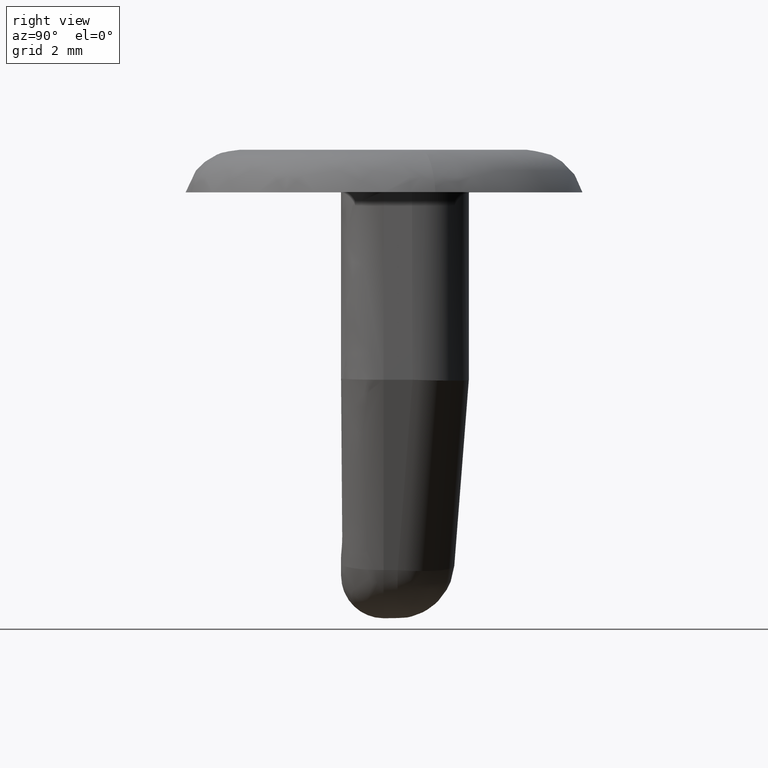
[diagram: clean part render]
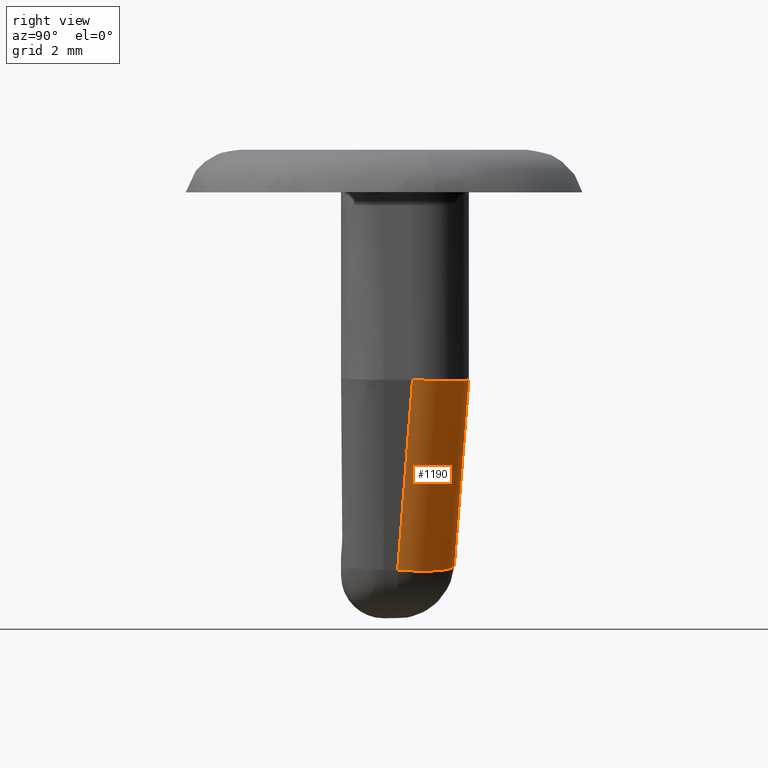
[diagram: same view with one face highlighted and labeled with its STEP entity id]
A machine part, right view. The second image highlights one B-rep face of the part: STEP entity #1190.
In plain terms, the highlighted face is a freeform B-spline surface patch.
Its self-contained STEP definition (entity closure, byte-faithful):
#1038=CARTESIAN_POINT('',(-0.000001159809432,2.487830042982005,-13.155775303790801));
#1039=VERTEX_POINT('',#1038);
#1097=CARTESIAN_POINT('',(1.977102512806405,0.493905729721868,-13.301766975822019));
#1098=VERTEX_POINT('',#1097);
#1099=CARTESIAN_POINT('',(-0.000001159809432,2.487830042982006,-13.155775303790801));
#1100=CARTESIAN_POINT('',(1.954136987054395,2.464669669888497,-13.452227801463254));
#1101=CARTESIAN_POINT('',(1.977102512806405,0.493905729721868,-13.301766975822019));
#1109=(BOUNDED_CURVE()B_SPLINE_CURVE(2,(#1099,#1100,#1101),.UNSPECIFIED.,.F.,.U.)CURVE()GEOMETRIC_REPRESENTATION_ITEM()QUASI_UNIFORM_CURVE()RATIONAL_B_SPLINE_CURVE((1.0,0.711249589235532,1.0))REPRESENTATION_ITEM(''));
#1110=EDGE_CURVE('',#1039,#1098,#1109,.T.);
#1131=CARTESIAN_POINT('',(-0.100604930521645,2.474170258274497,-13.312149227053260));
#1132=CARTESIAN_POINT('',(0.976104520698729,3.025291603333124,-6.257802623758908));
#1133=CARTESIAN_POINT('',(2.074565500417537,2.531635356025844,-13.648636351440576));
#1134=CARTESIAN_POINT('',(3.151274951637910,3.082756701084473,-6.594289748146228));
#1135=CARTESIAN_POINT('',(1.948287844112666,0.341724637567641,-13.458275576410145));
#1136=CARTESIAN_POINT('',(3.024997295333040,0.892845982626268,-6.403928973115797));
#1144=(BOUNDED_SURFACE()B_SPLINE_SURFACE(1,2,((#1131,#1133,#1135),(#1132,#1134,#1136)),.UNSPECIFIED.,.F.,.F.,.U.)B_SPLINE_SURFACE_WITH_KNOTS((2,2),(3,3),(0.0,7.157293062236381),(0.0,3.540894545729535),.UNSPECIFIED.)GEOMETRIC_REPRESENTATION_ITEM()RATIONAL_B_SPLINE_SURFACE(((1.0,0.671073070326273,0.996137879652317),(1.0,0.671073070326273,0.996137879652317)))REPRESENTATION_ITEM('')SURFACE());
#1145=CARTESIAN_POINT('',(1.000572628922914,2.999980810908825,-6.600251620136699));
#1146=VERTEX_POINT('',#1145);
#1147=CARTESIAN_POINT('',(2.999950953612275,1.017458232583580,-6.600301133317520));
#1148=VERTEX_POINT('',#1147);
#1149=CARTESIAN_POINT('',(1.000572628922914,2.999980810908825,-6.600251620136699));
#1150=CARTESIAN_POINT('',(1.131695575817114,2.999411666225943,-6.607536665248436));
#1151=CARTESIAN_POINT('',(1.261487236234938,2.986293614454879,-6.612565513271774));
#1152=CARTESIAN_POINT('',(1.454084687215060,2.947768702725762,-6.618909944822135));
#1153=CARTESIAN_POINT('',(1.517769332442466,2.931765611675962,-6.620772616905091));
#1154=CARTESIAN_POINT('',(1.642209093026433,2.894034651665202,-6.624046317691152));
#1155=CARTESIAN_POINT('',(1.764271633155027,2.850478370675647,-6.626884170212424));
#1156=CARTESIAN_POINT('',(1.881628625929032,2.795396678268909,-6.628964881105359));
#1157=CARTESIAN_POINT('',(1.996591445159226,2.734452447149859,-6.630690931444335));
#1158=CARTESIAN_POINT('',(2.053171308711628,2.700842987082765,-6.631378974856339));
#1159=CARTESIAN_POINT('',(2.216657316181497,2.592526515754209,-6.632898050488094));
#1160=CARTESIAN_POINT('',(2.317185139369072,2.510732377189785,-6.633198008059449));
#1161=CARTESIAN_POINT('',(2.455528966145996,2.373945447034056,-6.632670999903683));
#1162=CARTESIAN_POINT('',(2.499554435049163,2.325984109648395,-6.632330782925951));
#1163=CARTESIAN_POINT('',(2.583286793628629,2.225171179335433,-6.631318212792373));
#1164=CARTESIAN_POINT('',(2.622615591086424,2.172735005148325,-6.630648929632603));
#1165=CARTESIAN_POINT('',(2.731802921068366,2.011307177148264,-6.628196485839058));
#1166=CARTESIAN_POINT('',(2.793557198701412,1.897506923367659,-6.625965907697662));
#1167=CARTESIAN_POINT('',(2.869460814897596,1.717437142607916,-6.621747897497009));
#1168=CARTESIAN_POINT('',(2.892035914549600,1.655511155536523,-6.620185888521981));
#1169=CARTESIAN_POINT('',(2.930600686182934,1.530868262932040,-6.616829455071717));
#1170=CARTESIAN_POINT('',(2.946695930707158,1.467989912832090,-6.615032411490319));
#1171=CARTESIAN_POINT('',(2.985637408346106,1.277721886320084,-6.609299730871997));
#1172=CARTESIAN_POINT('',(2.999229900358202,1.148715068785231,-6.605025304325687));
#1173=CARTESIAN_POINT('',(2.999950953612275,1.017458232583580,-6.600301133317520));
#1174=B_SPLINE_CURVE_WITH_KNOTS('',3,(#1149,#1150,#1151,#1152,#1153,#1154,#1155,#1156,#1157,#1158,#1159,#1160,#1161,#1162,#1163,#1164,#1165,#1166,#1167,#1168,#1169,#1170,#1171,#1172,#1173),.UNSPECIFIED.,.F.,.U.,(4,2,2,1,2,2,2,2,2,2,2,2,4),(0.0,0.125000000000000,0.187500000000000,0.250000000000000,0.312500000000000,0.375000000000001,0.500000000000001,0.562500000000001,0.625000000000000,0.750000000000000,0.812500000000000,0.875000000000000,1.0),.UNSPECIFIED.);
#1175=EDGE_CURVE('',#1146,#1148,#1174,.T.);
#1176=ORIENTED_EDGE('',*,*,#1175,.T.);
#1177=CARTESIAN_POINT('',(1.977102512806405,0.493905729721868,-13.301766975822019));
#1178=CARTESIAN_POINT('',(2.999950953612275,1.017458232583580,-6.600301133317520));
#1179=QUASI_UNIFORM_CURVE('',1,(#1177,#1178),.UNSPECIFIED.,.F.,.U.);
#1180=EDGE_CURVE('',#1098,#1148,#1179,.T.);
#1181=ORIENTED_EDGE('',*,*,#1180,.F.);
#1182=ORIENTED_EDGE('',*,*,#1110,.F.);
#1183=CARTESIAN_POINT('',(1.000572628922914,2.999980810908825,-6.600251620136699));
#1184=CARTESIAN_POINT('',(-0.000001159809432,2.487830042982005,-13.155775303790801));
#1185=QUASI_UNIFORM_CURVE('',1,(#1183,#1184),.UNSPECIFIED.,.F.,.U.);
#1186=EDGE_CURVE('',#1146,#1039,#1185,.T.);
#1187=ORIENTED_EDGE('',*,*,#1186,.F.);
#1188=EDGE_LOOP('',(#1176,#1181,#1182,#1187));
#1189=FACE_OUTER_BOUND('',#1188,.T.);
#1190=ADVANCED_FACE('',(#1189),#1144,.T.);